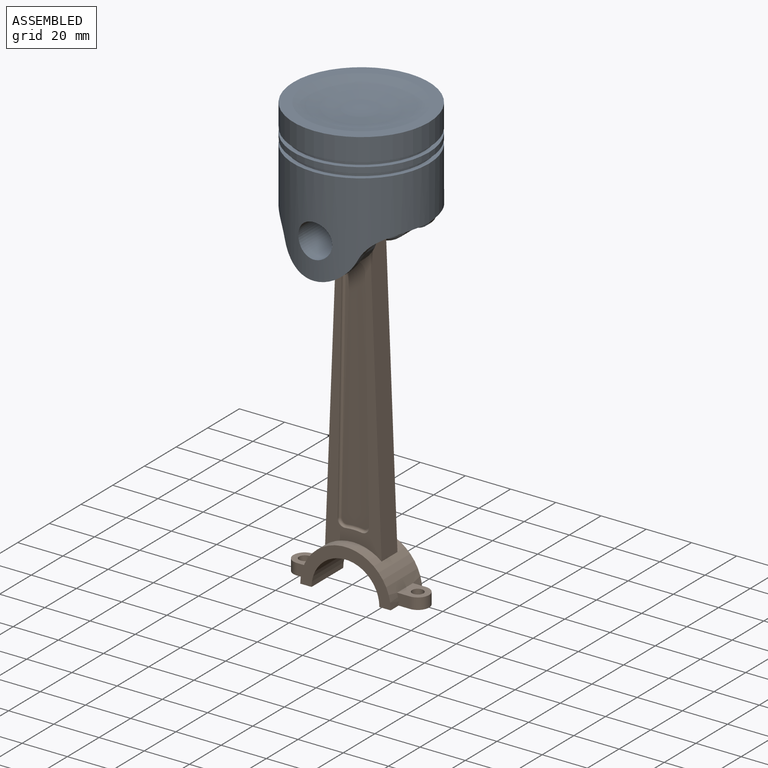
[diagram: assembled view]
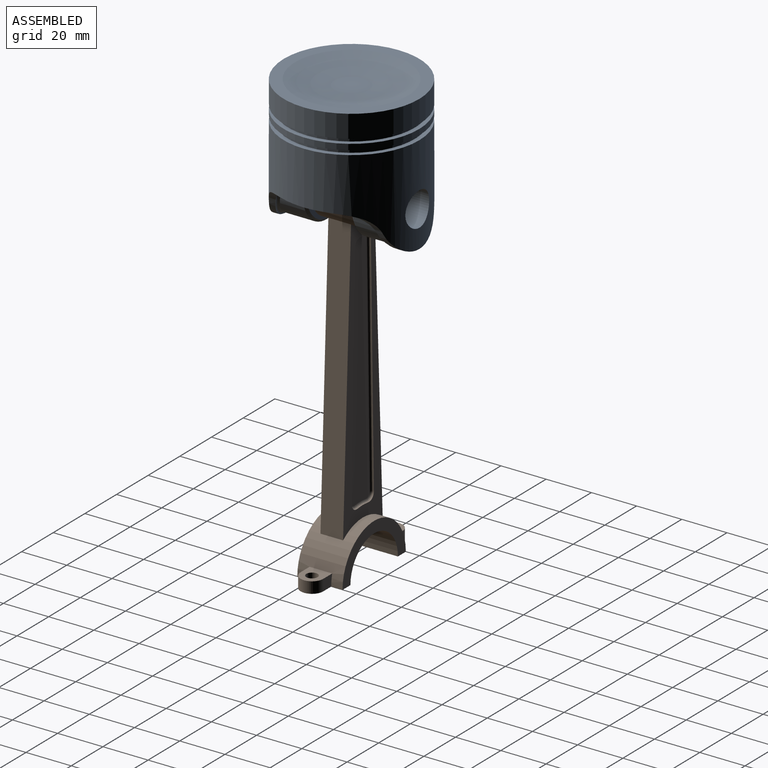
[diagram: assembled view, second angle]
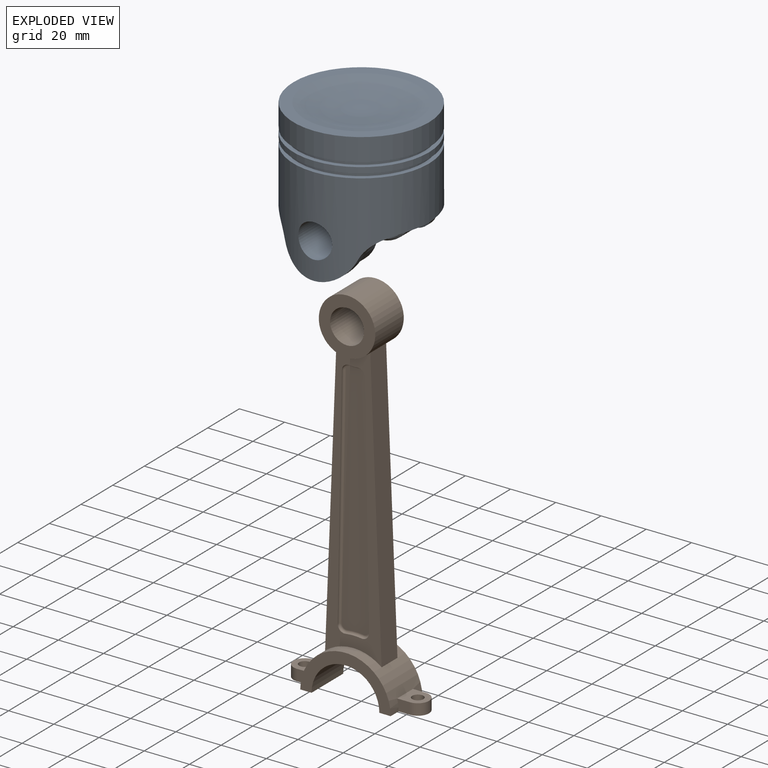
[diagram: exploded view]
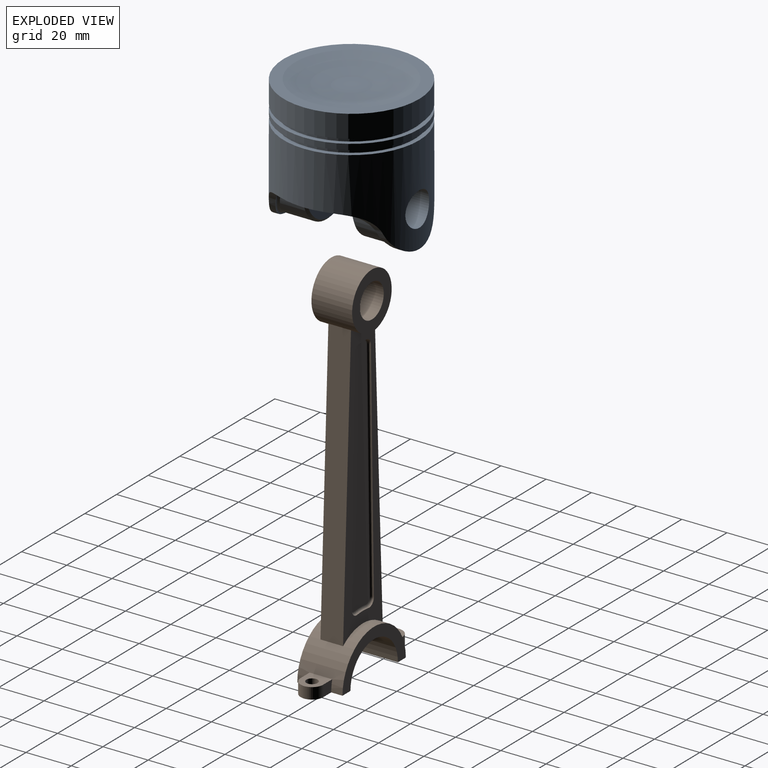
[diagram: exploded view, second angle]
ASSEMBLY  parts=2 mates=2
PART A: 44 faces, bbox 60x60x60 mm
  f0: cylinder r=27.5mm len=15mm, axis (0,0,-1), area 1.7mm2, adj f23,f36,f42
  f1: cylinder r=27.5mm len=15mm, axis (0,0,-1), area 1.7mm2, adj f21,f37,f39
  f2: plane 24x10.12mm, normal (1,0,0), area 243mm2, adj f22,f27,f30,f38
  f3: plane 24x10.12mm, normal (-1,0,0), area 243mm2, adj f22,f27,f32,f40
  f4: plane 24x10.12mm, normal (-1,0,0), area 243mm2, adj f22,f26,f33,f43
  f5: plane 24x10.12mm, normal (1,0,0), area 243mm2, adj f22,f26,f35,f41
  f6: cylinder r=30mm len=60mm, axis (0,0,1), area 5415.4mm2, adj f16,f17,f18,f28,f29,f36,f37
  f7: torus R=3.63mm, axis (0,0,1), area 1989mm2, adj f8
  f8: plane 60x60mm, normal (0,0,1), area 863.9mm2, adj f7,f9
  f9: cylinder r=30mm len=60mm, axis (0,0,1), area 1885mm2, adj f8,f10
  f10: plane 60x60mm, normal (0,0,-1), area 364.4mm2, adj f9,f11
  f11: cylinder r=28mm len=56mm, axis (0,0,1), area 351.9mm2, adj f10,f12
  f12: plane 60x60mm, normal (0,0,1), area 364.4mm2, adj f11,f13
  f13: cylinder r=30mm len=60mm, axis (0,0,1), area 471.2mm2, adj f12,f14
  f14: plane 60x60mm, normal (0,0,-1), area 364.4mm2, adj f13,f15
  f15: cylinder r=28mm len=56mm, axis (0,0,1), area 351.9mm2, adj f14,f16
  f16: plane 60x60mm, normal (0,0,1), area 364.4mm2, adj f6,f15
  f17: cylinder r=15mm len=50.56mm, axis (0,-1,0), area 166.1mm2, adj f6,f23,f36,f37
  f18: cylinder r=15mm len=50.56mm, axis (0,-1,0), area 166.1mm2, adj f6,f21,f36,f37
  f19: cylinder r=27.5mm len=15mm, axis (0,0,-1), area 1.7mm2, adj f23,f37,f39
  f20: cylinder r=27.5mm len=15mm, axis (0,0,-1), area 1.7mm2, adj f21,f36,f42
  f21: cylinder r=27.5mm len=46.1mm, axis (0,0,-1), area 1117.3mm2, adj f1,f18,f20,f22,f36,f37,f38,f39
  f22: plane 55x44.25mm, normal (0,0,-1), area 1410.3mm2, adj f2,f3,f4,f5,f21,f23,f24,f25
  f23: cylinder r=27.5mm len=46.1mm, axis (0,0,-1), area 1117.3mm2, adj f0,f17,f19,f22,f36,f37,f39,f40
  f24: plane 38x28mm, normal (0,-1,0), area 803.2mm2, adj f22,f29,f30,f31,f32
  f25: plane 38x28mm, normal (0,1,0), area 803.2mm2, adj f22,f28,f33,f34,f35
  f26: cylinder r=15mm len=30mm, axis (0,-1,0), area 607.3mm2, adj f4,f5,f34,f42
  f27: cylinder r=15mm len=30mm, axis (0,-1,0), area 607.3mm2, adj f2,f3,f31,f39
  f28: cylinder r=7.5mm len=20mm, axis (0,1,0), area 920.1mm2, adj f6,f25
  f29: cylinder r=7.5mm len=20mm, axis (0,1,0), area 920.2mm2, adj f6,f24
  f30: plane 24x1mm, normal (0.71,-0.71,0), area 33.9mm2, adj f2,f22,f24,f31
  f31: cone r=14mm half-angle=45deg, axis (0,1,0), area 64.4mm2, adj f24,f27,f30,f32
  f32: plane 24x1mm, normal (-0.71,-0.71,0), area 33.9mm2, adj f3,f22,f24,f31
  f33: plane 24x1mm, normal (-0.71,0.71,0), area 33.9mm2, adj f4,f22,f25,f34
  f34: cone r=14mm half-angle=45deg, axis (0,-1,0), area 64.4mm2, adj f25,f26,f33,f35
  f35: plane 24x1mm, normal (0.71,0.71,0), area 33.9mm2, adj f5,f22,f25,f34
  f36: cylinder r=17.5mm len=32.31mm, axis (0,-1,0), area 110.8mm2, adj f0,f6,f17,f18,f20,f21,f23
  f37: cylinder r=17.5mm len=32.31mm, axis (0,-1,0), area 110.8mm2, adj f1,f6,f17,f18,f19,f21,f23
  f38: cylinder r=1mm len=24mm, axis (0,0,-1), area 53.3mm2, adj f2,f21,f22,f39
  f39: bspline ~33.21x16.94mm, area 94.3mm2, adj f1,f19,f21,f23,f27,f38,f40
  f40: cylinder r=1mm len=24mm, axis (0,0,-1), area 53.3mm2, adj f3,f22,f23,f39
  f41: cylinder r=1mm len=24mm, axis (0,0,-1), area 53.3mm2, adj f5,f21,f22,f42
  f42: bspline ~33.22x16.94mm, area 94.3mm2, adj f0,f20,f21,f23,f26,f41,f43
  f43: cylinder r=1mm len=24mm, axis (0,0,-1), area 53.3mm2, adj f4,f22,f23,f42
PART B: 58 faces, bbox 60x20x162.5 mm
  f0: cylinder r=20mm len=40mm, axis (0,1,0), area 885.5mm2, adj f9,f14,f15,f16,f19,f21,f22,f23
  f1: cylinder r=7.5mm len=18mm, axis (0,1,0), area 848.2mm2, adj f3,f4
  f2: cylinder r=12.5mm len=25mm, axis (0,1,0), area 1252.8mm2, adj f3,f4,f9,f14,f15,f16
  f3: plane 25x25mm, normal (0,-1,0), area 314.2mm2, adj f1,f2
  f4: plane 25x25mm, normal (0,1,0), area 314.2mm2, adj f1,f2
  f5: plane 101.88x1.87mm, normal (1,0,-0.02), area 25.5mm2, adj f15,f36,f39,f40
  f6: plane 101.88x1.87mm, normal (-1,0,-0.02), area 25.5mm2, adj f15,f37,f38,f47
  f7: cylinder r=17.5mm len=3.53mm, axis (0,1,0), area 0.9mm2, adj f15,f36,f37,f43
  f8: cylinder r=25mm len=7.02mm, axis (0,1,0), area 1.8mm2, adj f15,f38,f39,f44
  f9: plane 124.39x10mm, normal (1,0,0.04), area 1244.9mm2, adj f0,f2,f15,f16
  f10: plane 101.88x1.87mm, normal (1,0,-0.02), area 25.5mm2, adj f16,f32,f35,f48
  f11: cylinder r=17.5mm len=3.53mm, axis (0,1,0), area 0.9mm2, adj f16,f32,f33,f51
  f12: plane 101.88x1.87mm, normal (-1,0,-0.02), area 25.5mm2, adj f16,f33,f34,f55
  f13: cylinder r=25mm len=7.02mm, axis (0,1,0), area 1.8mm2, adj f16,f34,f35,f52
  f14: plane 124.39x10mm, normal (-1,0,0.04), area 1244.9mm2, adj f0,f2,f15,f16
  f15: plane 124.39x25mm, normal (0,-1,0), area 1102.3mm2, adj f0,f2,f5,f6,f7,f8,f9,f14
  f16: plane 124.39x25mm, normal (0,1,0), area 1102.3mm2, adj f0,f2,f9,f10,f11,f12,f13,f14
  f17: plane 105.88x11.86mm, normal (0,-1,0), area 1053.5mm2, adj f40,f41,f42,f43,f44,f45,f46,f47
  f18: plane 105.88x11.86mm, normal (0,1,0), area 1053.5mm2, adj f48,f49,f50,f51,f52,f53,f54,f55
  f19: plane 20x15mm, normal (0,0,-1), area 169.6mm2, adj f0,f20,f22,f23,f28,f29,f30,f56
  f20: cylinder r=15mm len=30mm, axis (0,1,0), area 942.5mm2, adj f19,f21,f22,f23
  f21: plane 20x15mm, normal (0,0,-1), area 169.6mm2, adj f0,f20,f22,f23,f25,f26,f31,f57
  f22: plane 40x20mm, normal (0,-1,0), area 274.9mm2, adj f0,f19,f20,f21
  f23: plane 40x20mm, normal (0,1,0), area 274.9mm2, adj f0,f19,f20,f21
  f24: plane 10.64x10mm, normal (0,0,1), area 76mm2, adj f0,f25,f26,f31,f57
  f25: plane 5.64x5mm, normal (0,-1,0), area 26.1mm2, adj f0,f21,f24,f31
  f26: plane 5.64x5mm, normal (0,1,0), area 26.1mm2, adj f0,f21,f24,f31
  f27: plane 10.64x10mm, normal (0,0,1), area 76mm2, adj f0,f28,f29,f30,f56
  f28: plane 5.64x5mm, normal (0,-1,0), area 26.1mm2, adj f0,f19,f27,f30
  f29: plane 5.64x5mm, normal (0,1,0), area 26.1mm2, adj f0,f19,f27,f30
  f30: cylinder r=5mm len=10mm, axis (0,0,1), area 78.5mm2, adj f19,f27,f28,f29
  f31: cylinder r=5mm len=10mm, axis (0,0,-1), area 78.5mm2, adj f21,f24,f25,f26
  f32: cylinder r=3mm len=3.3mm, axis (0,1,0), area 1.2mm2, adj f10,f11,f16,f49
  f33: cylinder r=3mm len=3.3mm, axis (0,1,0), area 1.2mm2, adj f11,f12,f16,f53
  f34: cylinder r=3mm len=3.42mm, axis (0,1,0), area 1.3mm2, adj f12,f13,f16,f54
  f35: cylinder r=3mm len=3.42mm, axis (0,1,0), area 1.3mm2, adj f10,f13,f16,f50
  f36: cylinder r=3mm len=3.3mm, axis (0,1,0), area 1.2mm2, adj f5,f7,f15,f41
  f37: cylinder r=3mm len=3.3mm, axis (0,1,0), area 1.2mm2, adj f6,f7,f15,f45
  f38: cylinder r=3mm len=3.42mm, axis (0,1,0), area 1.3mm2, adj f6,f8,f15,f46
  f39: cylinder r=3mm len=3.42mm, axis (0,1,0), area 1.3mm2, adj f5,f8,f15,f42
  f40: cylinder r=1mm len=101.9mm, axis (0.02,0,1), area 160.1mm2, adj f5,f17,f41,f42
  f41: torus R=2mm, axis (0,-1,0), area 6.8mm2, adj f17,f36,f40,f43
  f42: torus R=2mm, axis (0,-1,0), area 7.2mm2, adj f17,f39,f40,f44
  f43: torus R=18.5mm, axis (0,-1,0), area 5.7mm2, adj f7,f17,f41,f45
  f44: torus R=26mm, axis (0,-1,0), area 11.2mm2, adj f8,f17,f42,f46
  f45: torus R=2mm, axis (0,-1,0), area 6.8mm2, adj f17,f37,f43,f47
  f46: torus R=2mm, axis (0,-1,0), area 7.2mm2, adj f17,f38,f44,f47
  f47: cylinder r=1mm len=101.9mm, axis (0.02,0,-1), area 160.1mm2, adj f6,f17,f45,f46
  f48: cylinder r=1mm len=101.9mm, axis (-0.02,0,-1), area 160.1mm2, adj f10,f18,f49,f50
  f49: torus R=2mm, axis (0,-1,0), area 6.8mm2, adj f18,f32,f48,f51
  f50: torus R=2mm, axis (0,-1,0), area 7.2mm2, adj f18,f35,f48,f52
  f51: torus R=18.5mm, axis (0,-1,0), area 5.7mm2, adj f11,f18,f49,f53
  f52: torus R=26mm, axis (0,-1,0), area 11.2mm2, adj f13,f18,f50,f54
  f53: torus R=2mm, axis (0,-1,0), area 6.8mm2, adj f18,f33,f51,f55
  f54: torus R=2mm, axis (0,-1,0), area 7.2mm2, adj f18,f34,f52,f55
  f55: cylinder r=1mm len=101.9mm, axis (-0.02,0,1), area 160.1mm2, adj f12,f18,f53,f54
  f56: cylinder r=2.5mm len=5mm, axis (0,0,-1), area 78.5mm2, adj f19,f27
  f57: cylinder r=2.5mm len=5mm, axis (0,0,-1), area 78.5mm2, adj f21,f24
PLACE A t=(0,0,2.13)mm
PLACE B t=(0,0,-41.87)mm
MATE slider B.f1 <-> A.f28  axis (0,1,0) through (0,-9,-41.87)mm
MATE planar A.f25 <-> B.f2  axis (0,1,0) through (0,-10,-34.11)mm
